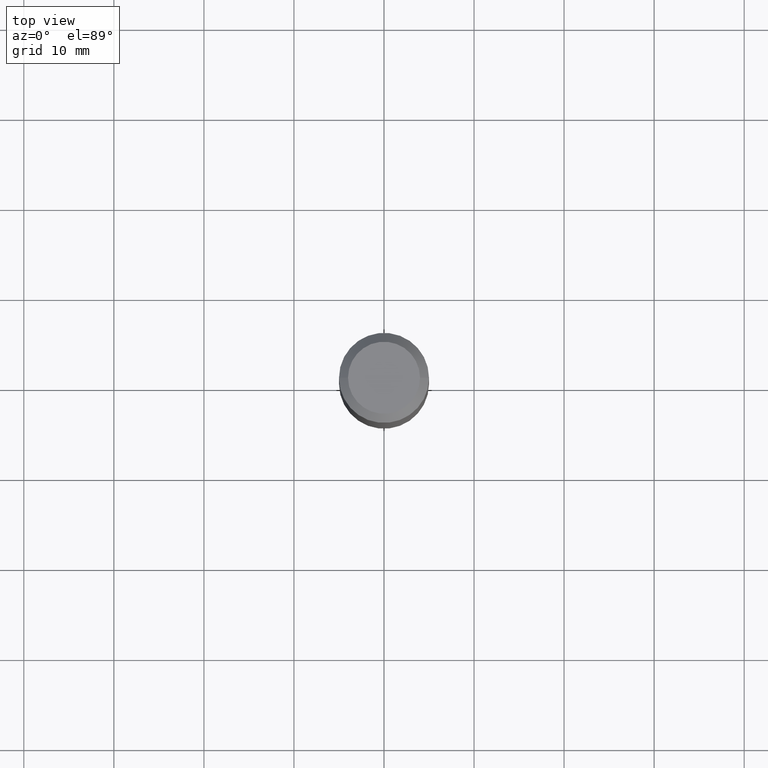
[diagram: clean part render]
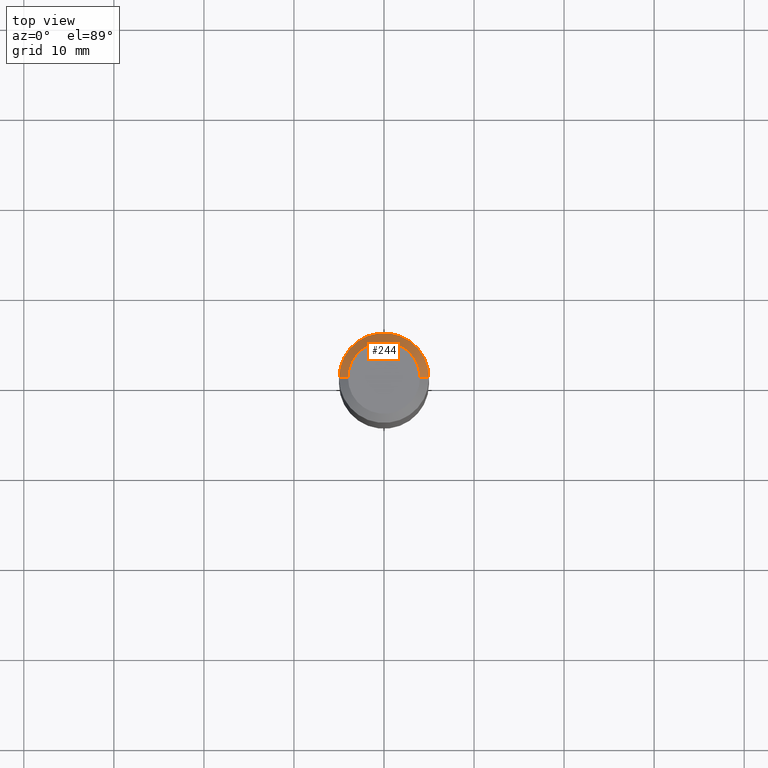
[diagram: same view with one face highlighted and labeled with its STEP entity id]
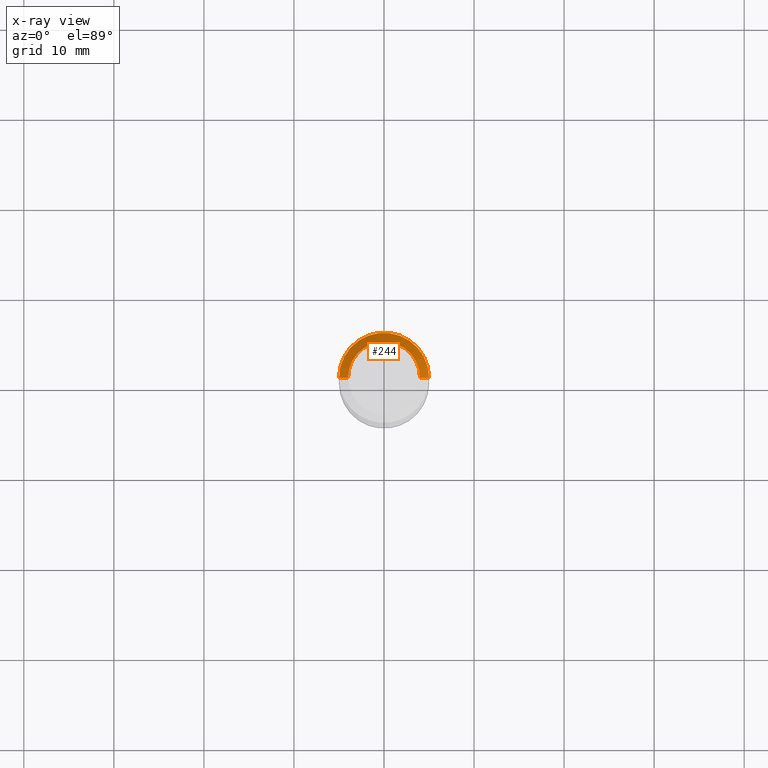
[diagram: x-ray of the same camera — body ghosted, the highlighted face saturated]
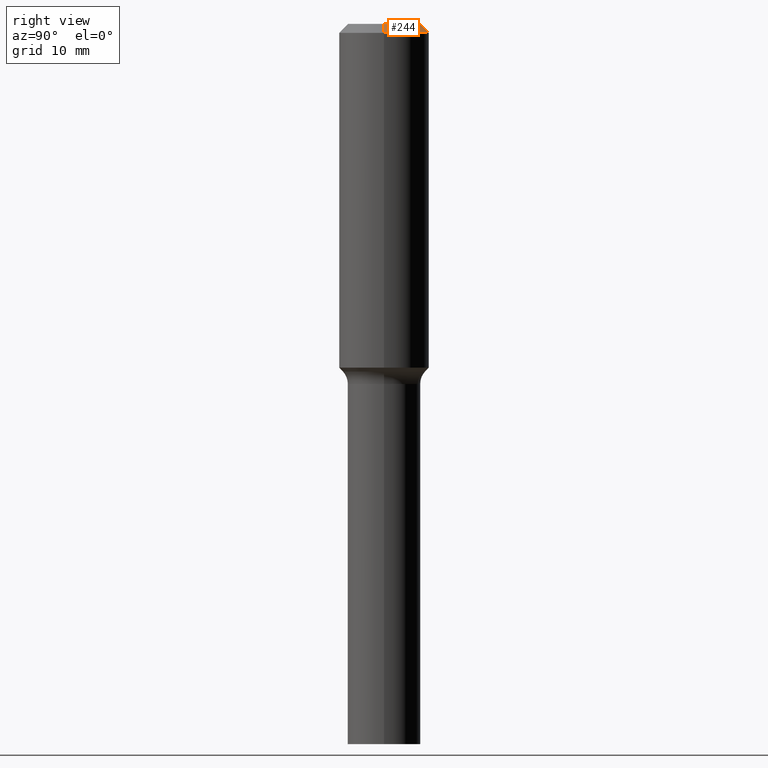
[diagram: same view with one face highlighted and labeled with its STEP entity id]
A machine part, top view. The second image highlights one B-rep face of the part: STEP entity #244.
The next image is the same camera in x-ray: the body ghosted, the highlighted face saturated — about 0% of this face is hidden behind the body in this view.
A second angle (right view) of the same face is appended — the face is thin or edge-on in the first view.
In plain terms, the highlighted conical surface has half-angle 45 deg.
Its self-contained STEP definition (entity closure, byte-faithful):
#5 = LINE ( 'NONE', #479, #198 ) ;
#42 = DIRECTION ( 'NONE',  ( -2.445468806185136597E-29, 3.491481338843145583E-15, 1.000000000000000000 ) ) ;
#81 = DIRECTION ( 'NONE',  ( -0.7071067811865453523, 2.468850131082234184E-15, -0.7071067811865496822 ) ) ;
#86 = DIRECTION ( 'NONE',  ( -1.000000000000000000, 6.982962677686265922E-15, 0.000000000000000000 ) ) ;
#99 = CARTESIAN_POINT ( 'NONE',  ( 9.627810689950945397E-31, -1.374596203102555315E-16, -0.03937000000000025896 ) ) ;
#116 = DIRECTION ( 'NONE',  ( 2.445468806185136597E-29, -3.491481338843145583E-15, -1.000000000000000000 ) ) ;
#139 = EDGE_CURVE ( 'NONE', #251, #186, #420, .T. ) ;
#150 = FACE_OUTER_BOUND ( 'NONE', #169, .T. ) ;
#155 = CARTESIAN_POINT ( 'NONE',  ( 0.1968500000000000250, -1.487948651171581601E-15, -0.03937000000000025896 ) ) ;
#157 = AXIS2_PLACEMENT_3D ( 'NONE', #99, #42, #441 ) ;
#161 = LINE ( 'NONE', #155, #203 ) ;
#169 = EDGE_LOOP ( 'NONE', ( #384, #258, #204, #234 ) ) ;
#183 = EDGE_CURVE ( 'NONE', #410, #186, #5, .T. ) ;
#186 = VERTEX_POINT ( 'NONE', #318 ) ;
#198 = VECTOR ( 'NONE', #81, 39.37007874015748143 ) ;
#203 = VECTOR ( 'NONE', #280, 39.37007874015748143 ) ;
#204 = ORIENTED_EDGE ( 'NONE', *, *, #139, .T. ) ;
#225 = AXIS2_PLACEMENT_3D ( 'NONE', #239, #405, #245 ) ;
#234 = ORIENTED_EDGE ( 'NONE', *, *, #183, .F. ) ;
#239 = CARTESIAN_POINT ( 'NONE',  ( -9.427742298522567634E-47, 1.346031739168368355E-32, 3.855188123715870730E-18 ) ) ;
#244 = ADVANCED_FACE ( 'NONE', ( #150 ), #270, .T. ) ;
#245 = DIRECTION ( 'NONE',  ( 1.000000000000000000, -6.982962677686265922E-15, 4.876223630392693006E-29 ) ) ;
#251 = VERTEX_POINT ( 'NONE', #449 ) ;
#258 = ORIENTED_EDGE ( 'NONE', *, *, #299, .T. ) ;
#259 = EDGE_CURVE ( 'NONE', #296, #410, #457, .T. ) ;
#270 = CONICAL_SURFACE ( 'NONE', #411, 0.1968500000000000250, 0.7853981633974452814 ) ;
#280 = DIRECTION ( 'NONE',  ( 0.7071067811865453523, -7.319954787623248157E-15, -0.7071067811865496822 ) ) ;
#296 = VERTEX_POINT ( 'NONE', #408 ) ;
#299 = EDGE_CURVE ( 'NONE', #296, #251, #161, .T. ) ;
#318 = CARTESIAN_POINT ( 'NONE',  ( -0.1968500000000000250, -1.293840745044226107E-15, -0.03937000000000025896 ) ) ;
#319 = CARTESIAN_POINT ( 'NONE',  ( 9.627810689950945397E-31, -1.374596203102555315E-16, -0.03937000000000025896 ) ) ;
#384 = ORIENTED_EDGE ( 'NONE', *, *, #259, .F. ) ;
#401 = CARTESIAN_POINT ( 'NONE',  ( -0.1574800000000000089, 1.168406772637159618E-15, 3.855188123707939751E-18 ) ) ;
#405 = DIRECTION ( 'NONE',  ( -2.445468806185136597E-29, 3.491481338843145583E-15, 1.000000000000000000 ) ) ;
#408 = CARTESIAN_POINT ( 'NONE',  ( 0.1574800000000000089, -1.284169937930321189E-15, 3.855188123724205385E-18 ) ) ;
#410 = VERTEX_POINT ( 'NONE', #401 ) ;
#411 = AXIS2_PLACEMENT_3D ( 'NONE', #319, #116, #86 ) ;
#420 = CIRCLE ( 'NONE', #157, 0.1968500000000000250 ) ;
#441 = DIRECTION ( 'NONE',  ( 1.000000000000000000, -6.982962677686265922E-15, 0.000000000000000000 ) ) ;
#449 = CARTESIAN_POINT ( 'NONE',  ( 0.1968500000000000250, -1.512055823412797189E-15, -0.03937000000000025896 ) ) ;
#457 = CIRCLE ( 'NONE', #225, 0.1574800000000000089 ) ;
#479 = CARTESIAN_POINT ( 'NONE',  ( -0.1968500000000000250, 1.237136582792286225E-15, -0.03937000000000025896 ) ) ;